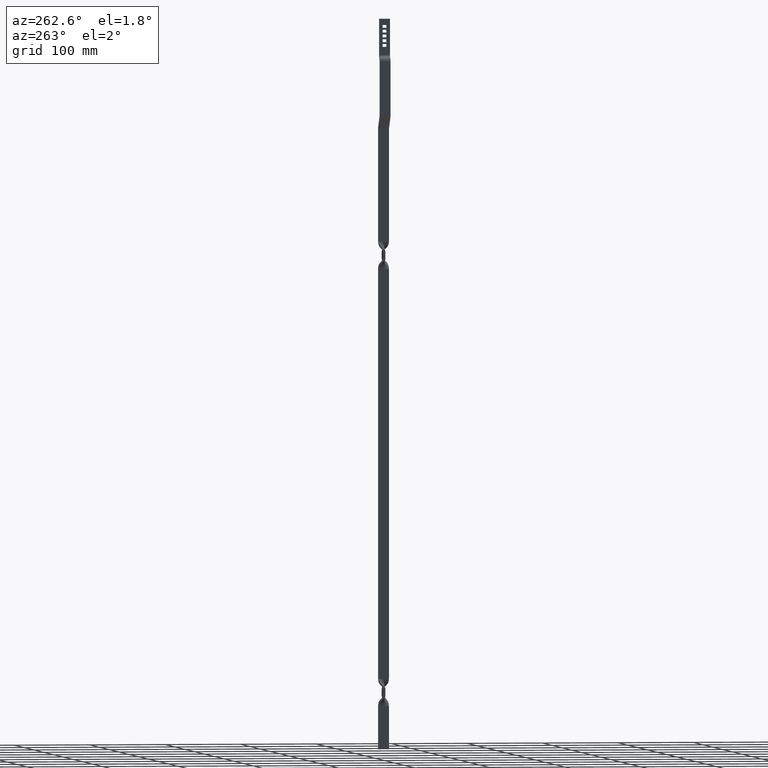
[diagram: clean part render]
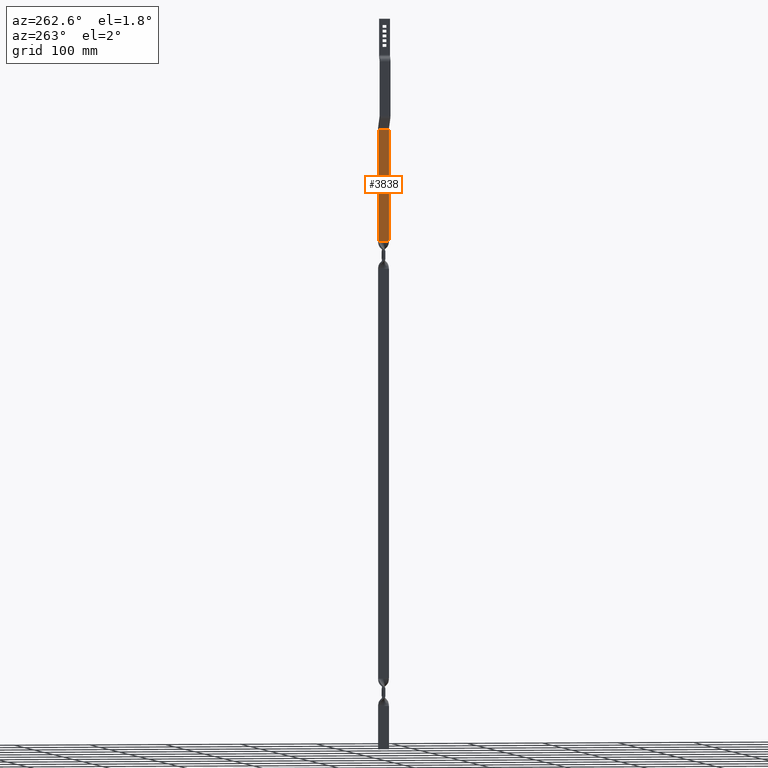
[diagram: same view with one face highlighted and labeled with its STEP entity id]
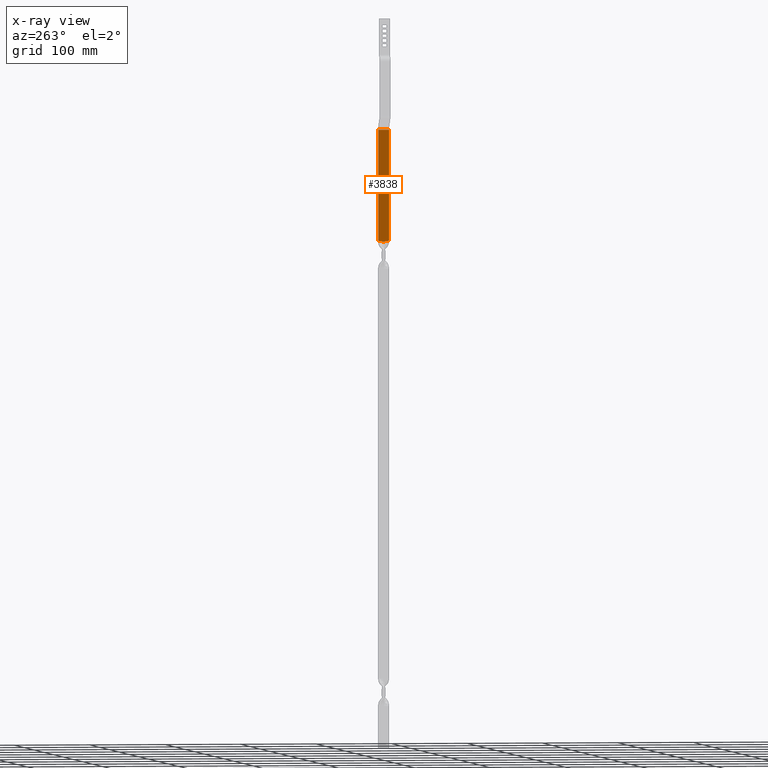
[diagram: x-ray of the same camera — body ghosted, the highlighted face saturated]
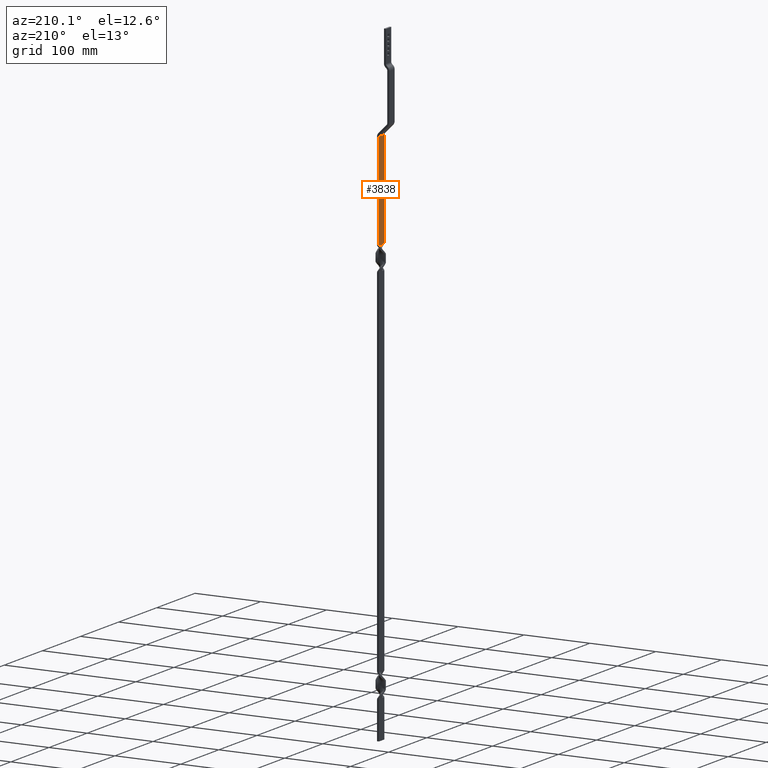
[diagram: same view with one face highlighted and labeled with its STEP entity id]
A machine part, auxiliary view. The second image highlights one B-rep face of the part: STEP entity #3838.
The next image is the same camera in x-ray: the body ghosted, the highlighted face saturated — about 0% of this face is hidden behind the body in this view.
A second angle (auxiliary view) of the same face is appended — the face is thin or edge-on in the first view.
In plain terms, the highlighted face is a freeform B-spline surface patch.
Its self-contained STEP definition (entity closure, byte-faithful):
#1351=CARTESIAN_POINT('',(10.499999999999559,0.271775746040870,-283.499999999955490));
#1352=VERTEX_POINT('',#1351);
#1376=CARTESIAN_POINT('',(10.499999999999581,7.0,-282.313138851933100));
#1377=VERTEX_POINT('',#1376);
#1378=CARTESIAN_POINT('',(10.499999999999581,7.0,-282.313138851933100));
#1379=CARTESIAN_POINT('',(10.499999999999581,6.434661942369225,-282.383037199525920));
#1380=CARTESIAN_POINT('',(10.499999999999460,5.870317070206171,-282.459521844686090));
#1381=CARTESIAN_POINT('',(10.499999999999460,4.743981124447790,-282.628100322096200));
#1382=CARTESIAN_POINT('',(10.499999999999590,4.182003036503421,-282.720280268535300));
#1383=CARTESIAN_POINT('',(10.499999999999590,3.060551510413280,-282.921249716639180));
#1384=CARTESIAN_POINT('',(10.499999999999570,2.501416190333448,-283.030179166615990));
#1385=CARTESIAN_POINT('',(10.499999999999559,1.385497779343617,-283.259857808742590));
#1386=CARTESIAN_POINT('',(10.499999999999559,0.828539089864535,-283.380513484868520));
#1387=CARTESIAN_POINT('',(10.499999999999559,0.271775746040870,-283.499999999955490));
#1388=B_SPLINE_CURVE_WITH_KNOTS('',3,(#1378,#1379,#1380,#1381,#1382,#1383,#1384,#1385,#1386,#1387),.UNSPECIFIED.,.F.,.U.,(4,2,2,2,4),(0.0,0.250000000000000,0.500000000000000,0.750000000000000,1.0),.UNSPECIFIED.);
#1389=EDGE_CURVE('',#1377,#1352,#1388,.T.);
#1454=CARTESIAN_POINT('',(10.499999999999581,-7.0,-282.289823195501980));
#1455=VERTEX_POINT('',#1454);
#1469=CARTESIAN_POINT('',(10.499999999999559,0.271775746040870,-283.499999999955490));
#1470=CARTESIAN_POINT('',(10.499999999999501,-0.331125422285592,-283.381840452124100));
#1471=CARTESIAN_POINT('',(10.499999999999551,-0.934187228391706,-283.262608892221120));
#1472=CARTESIAN_POINT('',(10.499999999999559,-2.141573673938212,-283.032512668308020));
#1473=CARTESIAN_POINT('',(10.499999999999581,-2.746067614053632,-282.921779648610030));
#1474=CARTESIAN_POINT('',(10.499999999999581,-3.957689163754543,-282.715155313488880));
#1475=CARTESIAN_POINT('',(10.499999999999710,-4.564574697634991,-282.619239176065320));
#1476=CARTESIAN_POINT('',(10.499999999999710,-5.780642736340799,-282.443213668926210));
#1477=CARTESIAN_POINT('',(10.499999999999581,-6.389812878324876,-282.363019223445580));
#1478=CARTESIAN_POINT('',(10.499999999999581,-7.0,-282.289823195501980));
#1479=B_SPLINE_CURVE_WITH_KNOTS('',3,(#1469,#1470,#1471,#1472,#1473,#1474,#1475,#1476,#1477,#1478),.UNSPECIFIED.,.F.,.U.,(4,2,2,2,4),(0.0,0.250000000000000,0.500000000000000,0.750000000000000,1.0),.UNSPECIFIED.);
#1480=EDGE_CURVE('',#1352,#1455,#1479,.T.);
#2118=CARTESIAN_POINT('',(10.500000000000821,-7.0,-136.227922061358410));
#2119=VERTEX_POINT('',#2118);
#2140=CARTESIAN_POINT('',(10.500000000000821,7.0,-136.227922061358410));
#2141=VERTEX_POINT('',#2140);
#2155=CARTESIAN_POINT('',(10.500000000000821,-7.0,-136.227922061358410));
#2156=CARTESIAN_POINT('',(10.500000000000821,7.0,-136.227922061358410));
#2157=QUASI_UNIFORM_CURVE('',1,(#2155,#2156),.UNSPECIFIED.,.F.,.U.);
#2158=EDGE_CURVE('',#2119,#2141,#2157,.T.);
#3683=CARTESIAN_POINT('',(10.500000000000821,7.0,-136.227922061358410));
#3684=CARTESIAN_POINT('',(10.499999999999581,7.0,-282.313138851933100));
#3685=QUASI_UNIFORM_CURVE('',1,(#3683,#3684),.UNSPECIFIED.,.F.,.U.);
#3686=EDGE_CURVE('',#2141,#1377,#3685,.T.);
#3753=CARTESIAN_POINT('',(10.500000000000821,-7.0,-136.227922061358410));
#3754=CARTESIAN_POINT('',(10.499999999999581,-7.0,-282.289823195501980));
#3755=QUASI_UNIFORM_CURVE('',1,(#3753,#3754),.UNSPECIFIED.,.F.,.U.);
#3756=EDGE_CURVE('',#2119,#1455,#3755,.T.);
#3826=CARTESIAN_POINT('',(10.500000000000840,-7.699299972865282,-128.871680671282410));
#3827=CARTESIAN_POINT('',(10.500000000000840,-7.699299972865284,-290.856244023461390));
#3828=CARTESIAN_POINT('',(10.500000000000840,7.699300348374544,-128.871680671282410));
#3829=CARTESIAN_POINT('',(10.500000000000840,7.699300348374545,-290.856244023461390));
#3830=B_SPLINE_SURFACE_WITH_KNOTS('',1,1,((#3826,#3828),(#3827,#3829)),.UNSPECIFIED.,.F.,.F.,.U.,(2,2),(2,2),(0.0,161.984563352179010),(0.0,15.398600321239829),.UNSPECIFIED.);
#3831=ORIENTED_EDGE('',*,*,#3686,.T.);
#3832=ORIENTED_EDGE('',*,*,#1389,.T.);
#3833=ORIENTED_EDGE('',*,*,#1480,.T.);
#3834=ORIENTED_EDGE('',*,*,#3756,.F.);
#3835=ORIENTED_EDGE('',*,*,#2158,.T.);
#3836=EDGE_LOOP('',(#3831,#3832,#3833,#3834,#3835));
#3837=FACE_OUTER_BOUND('',#3836,.T.);
#3838=ADVANCED_FACE('',(#3837),#3830,.F.);